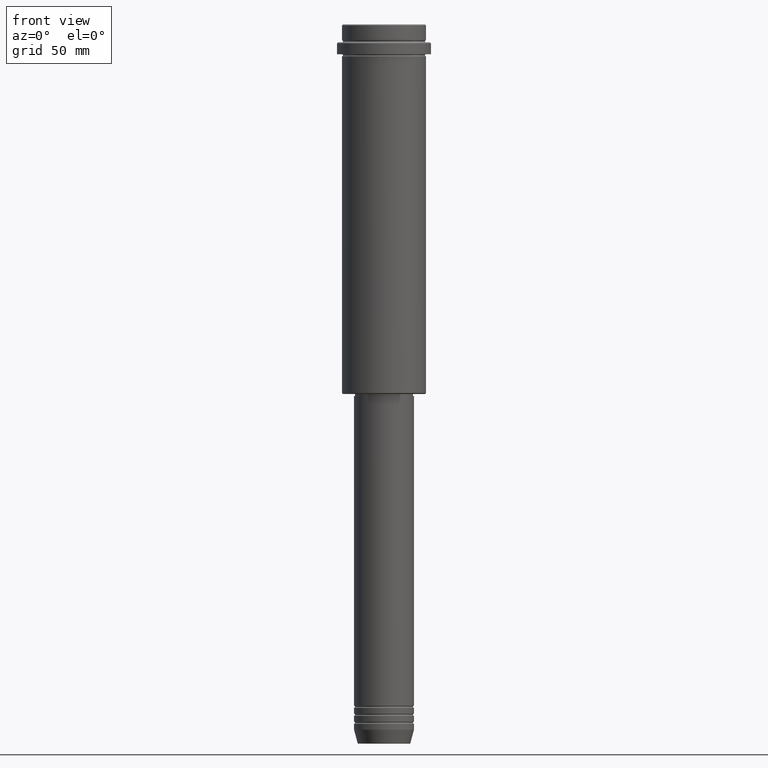
[diagram: clean part render]
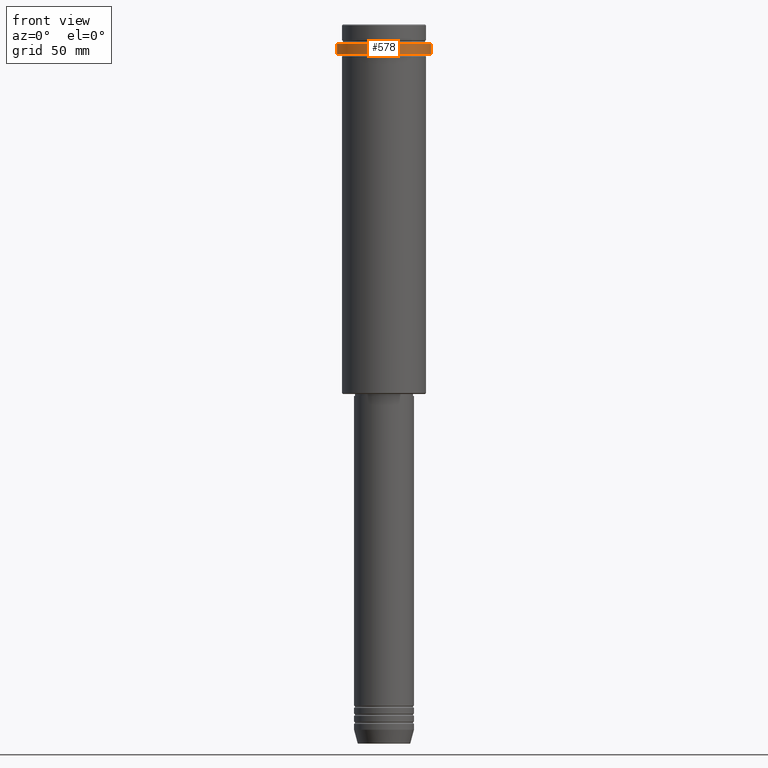
[diagram: same view with one face highlighted and labeled with its STEP entity id]
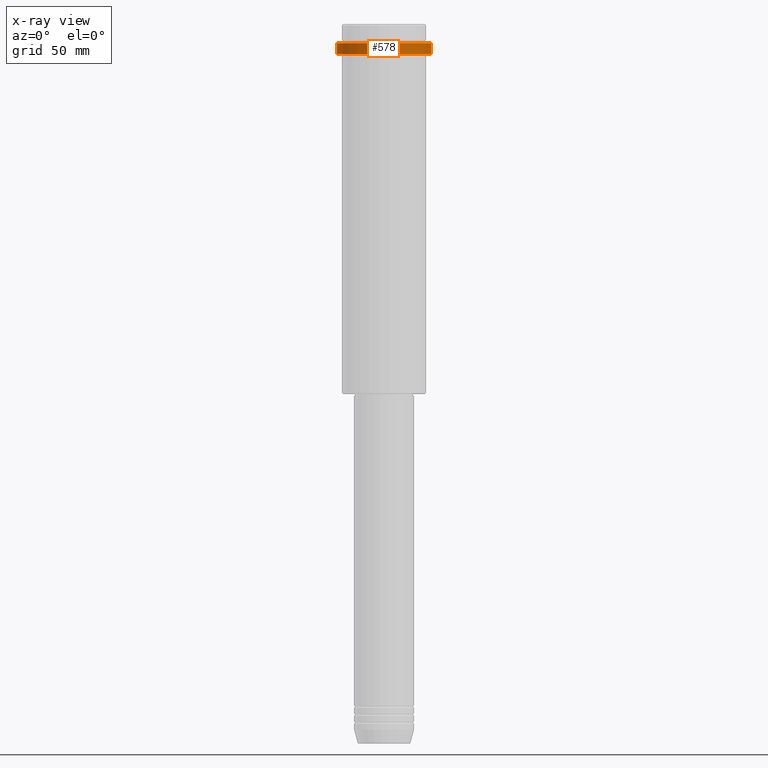
[diagram: x-ray of the same camera — body ghosted, the highlighted face saturated]
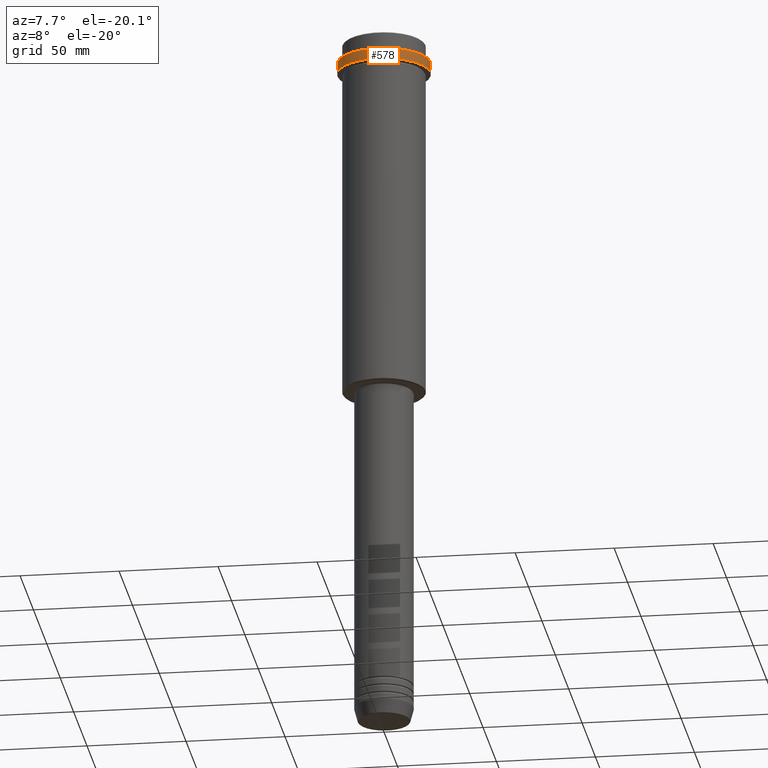
[diagram: same view with one face highlighted and labeled with its STEP entity id]
A machine part, front view. The second image highlights one B-rep face of the part: STEP entity #578.
The next image is the same camera in x-ray: the body ghosted, the highlighted face saturated — about 0% of this face is hidden behind the body in this view.
A second angle (auxiliary view) of the same face is appended — the face is thin or edge-on in the first view.
In plain terms, the highlighted cylindrical surface (partial cylindrical patch) has radius 23.5 mm, axis along (-0, -0, 1).
Its self-contained STEP definition (entity closure, byte-faithful):
#1 = CARTESIAN_POINT ( 'NONE',  ( 0.000000000000000000, 0.000000000000000000, -15.00000000000000178 ) ) ;
#69 = DIRECTION ( 'NONE',  ( 0.000000000000000000, 0.000000000000000000, -1.000000000000000000 ) ) ;
#70 = VERTEX_POINT ( 'NONE', #1173 ) ;
#99 = DIRECTION ( 'NONE',  ( -0.000000000000000000, -0.000000000000000000, 1.000000000000000000 ) ) ;
#189 = ORIENTED_EDGE ( 'NONE', *, *, #961, .F. ) ;
#235 = CARTESIAN_POINT ( 'NONE',  ( 23.50000000000000000, 0.000000000000000000, 0.000000000000000000 ) ) ;
#248 = EDGE_CURVE ( 'NONE', #70, #1356, #1021, .T. ) ;
#260 = VERTEX_POINT ( 'NONE', #555 ) ;
#276 = EDGE_CURVE ( 'NONE', #1356, #1143, #1217, .T. ) ;
#297 = DIRECTION ( 'NONE',  ( -0.000000000000000000, -0.000000000000000000, 1.000000000000000000 ) ) ;
#336 = CARTESIAN_POINT ( 'NONE',  ( 23.50000000000000355, 0.000000000000000000, -15.00000000000000178 ) ) ;
#399 = VECTOR ( 'NONE', #1193, 1000.000000000000000 ) ;
#442 = ORIENTED_EDGE ( 'NONE', *, *, #276, .T. ) ;
#491 = CIRCLE ( 'NONE', #656, 23.50000000000000000 ) ;
#511 = ORIENTED_EDGE ( 'NONE', *, *, #248, .T. ) ;
#555 = CARTESIAN_POINT ( 'NONE',  ( -23.50000000000000000, 2.877919977996280320E-15, -9.500000000000056843 ) ) ;
#559 = AXIS2_PLACEMENT_3D ( 'NONE', #1, #99, #566 ) ;
#566 = DIRECTION ( 'NONE',  ( 1.000000000000000000, 0.000000000000000000, 0.000000000000000000 ) ) ;
#578 = ADVANCED_FACE ( 'NONE', ( #1280 ), #1376, .T. ) ;
#606 = AXIS2_PLACEMENT_3D ( 'NONE', #1167, #297, #1055 ) ;
#638 = EDGE_LOOP ( 'NONE', ( #189, #511, #442, #1094 ) ) ;
#656 = AXIS2_PLACEMENT_3D ( 'NONE', #1174, #69, #1378 ) ;
#692 = CARTESIAN_POINT ( 'NONE',  ( 23.50000000000000000, 0.000000000000000000, -9.500000000000056843 ) ) ;
#762 = LINE ( 'NONE', #984, #399 ) ;
#863 = DIRECTION ( 'NONE',  ( -0.000000000000000000, -0.000000000000000000, 1.000000000000000000 ) ) ;
#961 = EDGE_CURVE ( 'NONE', #70, #260, #762, .T. ) ;
#984 = CARTESIAN_POINT ( 'NONE',  ( -23.50000000000000000, 2.877919977996280320E-15, 0.000000000000000000 ) ) ;
#1021 = CIRCLE ( 'NONE', #559, 23.50000000000000355 ) ;
#1055 = DIRECTION ( 'NONE',  ( 1.000000000000000000, 0.000000000000000000, 0.000000000000000000 ) ) ;
#1094 = ORIENTED_EDGE ( 'NONE', *, *, #1205, .T. ) ;
#1143 = VERTEX_POINT ( 'NONE', #692 ) ;
#1167 = CARTESIAN_POINT ( 'NONE',  ( 0.000000000000000000, 0.000000000000000000, 0.000000000000000000 ) ) ;
#1173 = CARTESIAN_POINT ( 'NONE',  ( -23.50000000000000711, 2.877919977996281109E-15, -15.00000000000000178 ) ) ;
#1174 = CARTESIAN_POINT ( 'NONE',  ( 0.000000000000000000, 0.000000000000000000, -9.500000000000056843 ) ) ;
#1193 = DIRECTION ( 'NONE',  ( -0.000000000000000000, -0.000000000000000000, 1.000000000000000000 ) ) ;
#1205 = EDGE_CURVE ( 'NONE', #1143, #260, #491, .T. ) ;
#1217 = LINE ( 'NONE', #235, #1225 ) ;
#1225 = VECTOR ( 'NONE', #863, 1000.000000000000000 ) ;
#1280 = FACE_OUTER_BOUND ( 'NONE', #638, .T. ) ;
#1356 = VERTEX_POINT ( 'NONE', #336 ) ;
#1376 = CYLINDRICAL_SURFACE ( 'NONE', #606, 23.50000000000000000 ) ;
#1378 = DIRECTION ( 'NONE',  ( 1.000000000000000000, 0.000000000000000000, 0.000000000000000000 ) ) ;